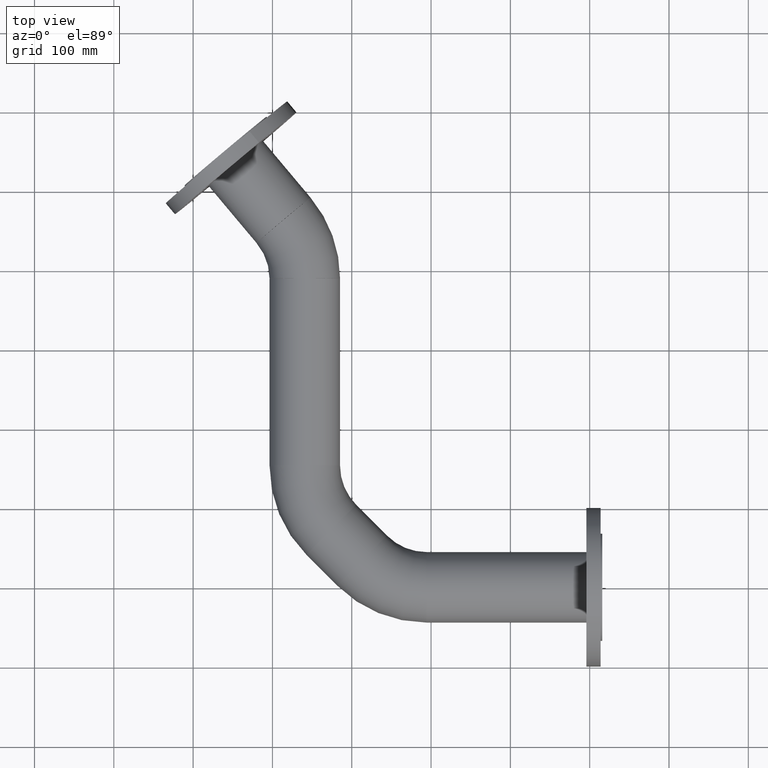
[diagram: clean part render]
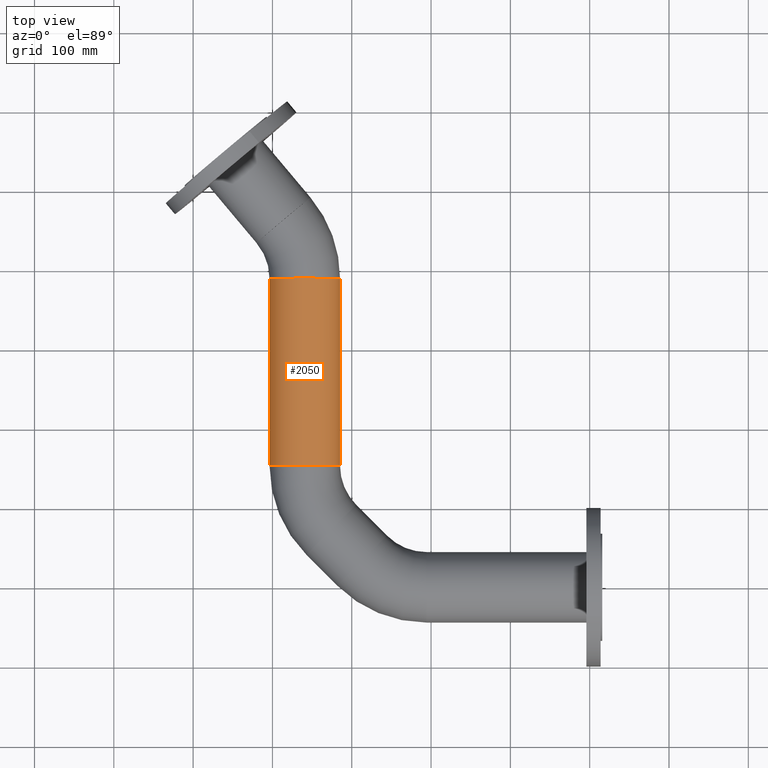
[diagram: same view with one face highlighted and labeled with its STEP entity id]
A machine part, top view. The second image highlights one B-rep face of the part: STEP entity #2050.
In plain terms, the highlighted cylindrical surface (edge-blend (fillet) strip) has radius 44.45 mm, axis along (-0, -1, -0).
Its self-contained STEP definition (entity closure, byte-faithful):
#195 = CARTESIAN_POINT ( 'NONE',  ( -259.1954364826297592, 153.3908729652592058, 0.000000000000000000 ) ) ;
#272 = DIRECTION ( 'NONE',  ( 2.220446049250312588E-16, 1.000000000000000000, 0.000000000000000000 ) ) ;
#303 = EDGE_CURVE ( 'NONE', #1879, #1205, #567, .T. ) ;
#394 = DIRECTION ( 'NONE',  ( 2.220446049250312588E-16, 1.000000000000000000, 0.000000000000000000 ) ) ;
#415 = VECTOR ( 'NONE', #1483, 1000.000000000000000 ) ;
#567 = CIRCLE ( 'NONE', #2261, 44.45000000000004547 ) ;
#573 = AXIS2_PLACEMENT_3D ( 'NONE', #1823, #2013, #905 ) ;
#765 = CARTESIAN_POINT ( 'NONE',  ( -214.7454364826297422, 153.3908729652592058, 0.000000000000000000 ) ) ;
#779 = EDGE_LOOP ( 'NONE', ( #1384, #1169, #931, #1437 ) ) ;
#852 = EDGE_CURVE ( 'NONE', #1777, #1205, #2288, .T. ) ;
#861 = DIRECTION ( 'NONE',  ( -1.000000000000000000, 0.000000000000000000, 0.000000000000000000 ) ) ;
#905 = DIRECTION ( 'NONE',  ( 1.000000000000000000, 0.000000000000000000, 0.000000000000000000 ) ) ;
#931 = ORIENTED_EDGE ( 'NONE', *, *, #303, .T. ) ;
#960 = DIRECTION ( 'NONE',  ( -1.000000000000000000, 0.000000000000000000, 0.000000000000000000 ) ) ;
#1169 = ORIENTED_EDGE ( 'NONE', *, *, #1539, .T. ) ;
#1205 = VERTEX_POINT ( 'NONE', #765 ) ;
#1278 = FACE_OUTER_BOUND ( 'NONE', #779, .T. ) ;
#1306 = LINE ( 'NONE', #1817, #1320 ) ;
#1320 = VECTOR ( 'NONE', #2045, 1000.000000000000000 ) ;
#1338 = CARTESIAN_POINT ( 'NONE',  ( -214.7454364826296853, 389.1500489170994115, 0.000000000000000000 ) ) ;
#1384 = ORIENTED_EDGE ( 'NONE', *, *, #1423, .F. ) ;
#1423 = EDGE_CURVE ( 'NONE', #2374, #1777, #1424, .T. ) ;
#1424 = CIRCLE ( 'NONE', #1500, 44.45000000000004547 ) ;
#1437 = ORIENTED_EDGE ( 'NONE', *, *, #852, .F. ) ;
#1483 = DIRECTION ( 'NONE',  ( -2.354570124668123057E-16, -1.000000000000000000, -0.000000000000000000 ) ) ;
#1500 = AXIS2_PLACEMENT_3D ( 'NONE', #2328, #272, #861 ) ;
#1539 = EDGE_CURVE ( 'NONE', #2374, #1879, #1306, .T. ) ;
#1777 = VERTEX_POINT ( 'NONE', #2069 ) ;
#1817 = CARTESIAN_POINT ( 'NONE',  ( -303.6454364826297478, 389.1500489170994115, 5.443555022209986486E-15 ) ) ;
#1823 = CARTESIAN_POINT ( 'NONE',  ( -259.1954364826297024, 389.1500489170994115, 0.000000000000000000 ) ) ;
#1879 = VERTEX_POINT ( 'NONE', #2346 ) ;
#2013 = DIRECTION ( 'NONE',  ( -2.354570124668123057E-16, -1.000000000000000000, -0.000000000000000000 ) ) ;
#2045 = DIRECTION ( 'NONE',  ( -2.354570124668123057E-16, -1.000000000000000000, -0.000000000000000000 ) ) ;
#2050 = ADVANCED_FACE ( 'NONE', ( #1278 ), #2197, .T. ) ;
#2069 = CARTESIAN_POINT ( 'NONE',  ( -214.7454364826296853, 389.1500489170994115, 0.000000000000000000 ) ) ;
#2160 = CARTESIAN_POINT ( 'NONE',  ( -303.6454364826297478, 389.1500489170994115, 5.443555022209982542E-15 ) ) ;
#2197 = CYLINDRICAL_SURFACE ( 'NONE', #573, 44.45000000000001705 ) ;
#2261 = AXIS2_PLACEMENT_3D ( 'NONE', #195, #394, #960 ) ;
#2288 = LINE ( 'NONE', #1338, #415 ) ;
#2328 = CARTESIAN_POINT ( 'NONE',  ( -259.1954364826297024, 389.1500489170994115, 0.000000000000000000 ) ) ;
#2346 = CARTESIAN_POINT ( 'NONE',  ( -303.6454364826297478, 153.3908729652592058, 5.443555022209990431E-15 ) ) ;
#2374 = VERTEX_POINT ( 'NONE', #2160 ) ;